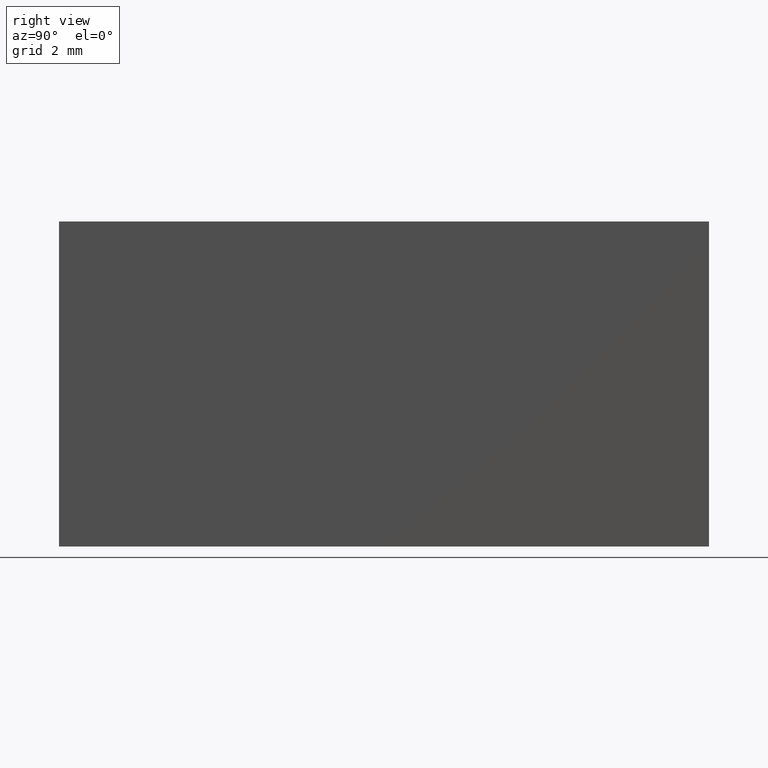
[diagram: clean part render]
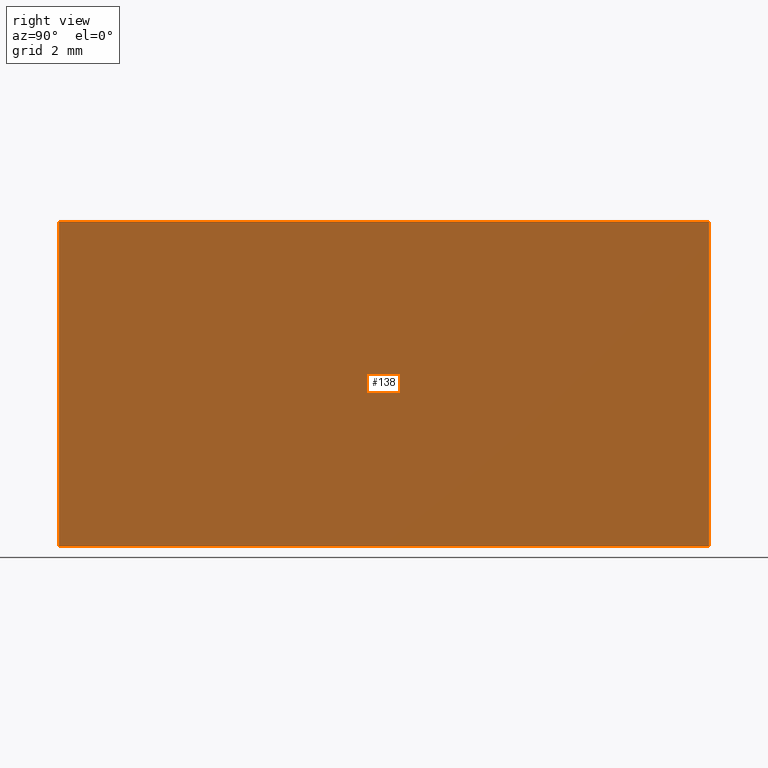
[diagram: same view with one face highlighted and labeled with its STEP entity id]
A machine part, right view. The second image highlights one B-rep face of the part: STEP entity #138.
In plain terms, the highlighted planar face has unit normal (-1, 0, 0).
Its self-contained STEP definition (entity closure, byte-faithful):
#1 = DIRECTION ( 'NONE',  ( -6.123233995736766000E-017, -0.0000000000000000000, -1.000000000000000000 ) ) ;
#7 = EDGE_CURVE ( 'NONE', #150, #12, #74, .T. ) ;
#12 = VERTEX_POINT ( 'NONE', #91 ) ;
#20 = CARTESIAN_POINT ( 'NONE',  ( 0.0000000000000000000, 20.00000000000000000, 0.0000000000000000000 ) ) ;
#21 = ORIENTED_EDGE ( 'NONE', *, *, #85, .F. ) ;
#29 = DIRECTION ( 'NONE',  ( -0.0000000000000000000, -1.000000000000000000, -0.0000000000000000000 ) ) ;
#37 = VECTOR ( 'NONE', #176, 1000.000000000000000 ) ;
#47 = CARTESIAN_POINT ( 'NONE',  ( 6.123233995736766300E-016, 0.0000000000000000000, 10.00000000000000000 ) ) ;
#52 = CARTESIAN_POINT ( 'NONE',  ( 0.0000000000000000000, 20.00000000000000000, 0.0000000000000000000 ) ) ;
#64 = PLANE ( 'NONE',  #115 ) ;
#67 = LINE ( 'NONE', #125, #118 ) ;
#71 = CARTESIAN_POINT ( 'NONE',  ( 6.123233995736766300E-016, 20.00000000000000000, 10.00000000000000000 ) ) ;
#74 = LINE ( 'NONE', #20, #188 ) ;
#84 = VECTOR ( 'NONE', #29, 1000.000000000000000 ) ;
#85 = EDGE_CURVE ( 'NONE', #12, #178, #195, .T. ) ;
#87 = CARTESIAN_POINT ( 'NONE',  ( 0.0000000000000000000, 0.0000000000000000000, 0.0000000000000000000 ) ) ;
#91 = CARTESIAN_POINT ( 'NONE',  ( 0.0000000000000000000, 20.00000000000000000, 0.0000000000000000000 ) ) ;
#97 = CARTESIAN_POINT ( 'NONE',  ( 0.0000000000000000000, 20.00000000000000000, 0.0000000000000000000 ) ) ;
#105 = CARTESIAN_POINT ( 'NONE',  ( 6.123233995736766300E-016, 20.00000000000000000, 10.00000000000000000 ) ) ;
#112 = FACE_OUTER_BOUND ( 'NONE', #202, .T. ) ;
#115 = AXIS2_PLACEMENT_3D ( 'NONE', #52, #170, #146 ) ;
#118 = VECTOR ( 'NONE', #200, 1000.000000000000000 ) ;
#121 = EDGE_CURVE ( 'NONE', #184, #178, #67, .T. ) ;
#125 = CARTESIAN_POINT ( 'NONE',  ( 0.0000000000000000000, 0.0000000000000000000, 0.0000000000000000000 ) ) ;
#133 = ORIENTED_EDGE ( 'NONE', *, *, #121, .T. ) ;
#138 = ADVANCED_FACE ( 'NONE', ( #112 ), #64, .F. ) ;
#146 = DIRECTION ( 'NONE',  ( 6.123233995736766000E-017, 0.0000000000000000000, 1.000000000000000000 ) ) ;
#150 = VERTEX_POINT ( 'NONE', #71 ) ;
#165 = ORIENTED_EDGE ( 'NONE', *, *, #7, .F. ) ;
#166 = ORIENTED_EDGE ( 'NONE', *, *, #204, .T. ) ;
#170 = DIRECTION ( 'NONE',  ( -1.000000000000000000, 0.0000000000000000000, 6.123233995736766000E-017 ) ) ;
#176 = DIRECTION ( 'NONE',  ( -0.0000000000000000000, -1.000000000000000000, -0.0000000000000000000 ) ) ;
#178 = VERTEX_POINT ( 'NONE', #87 ) ;
#184 = VERTEX_POINT ( 'NONE', #47 ) ;
#188 = VECTOR ( 'NONE', #1, 1000.000000000000000 ) ;
#195 = LINE ( 'NONE', #97, #84 ) ;
#200 = DIRECTION ( 'NONE',  ( -6.123233995736766000E-017, -0.0000000000000000000, -1.000000000000000000 ) ) ;
#201 = LINE ( 'NONE', #105, #37 ) ;
#202 = EDGE_LOOP ( 'NONE', ( #133, #21, #165, #166 ) ) ;
#204 = EDGE_CURVE ( 'NONE', #150, #184, #201, .T. ) ;